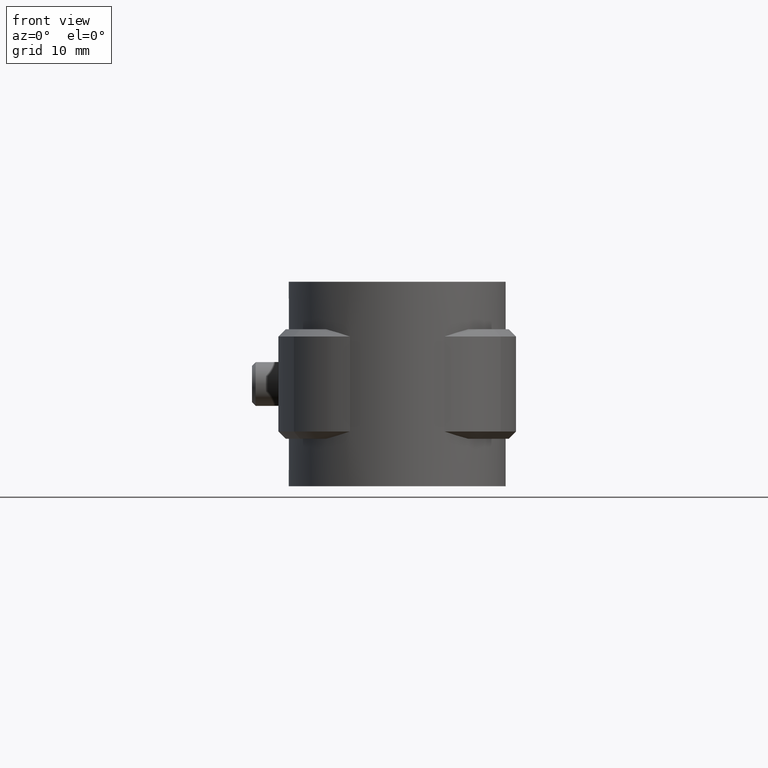
[diagram: clean part render]
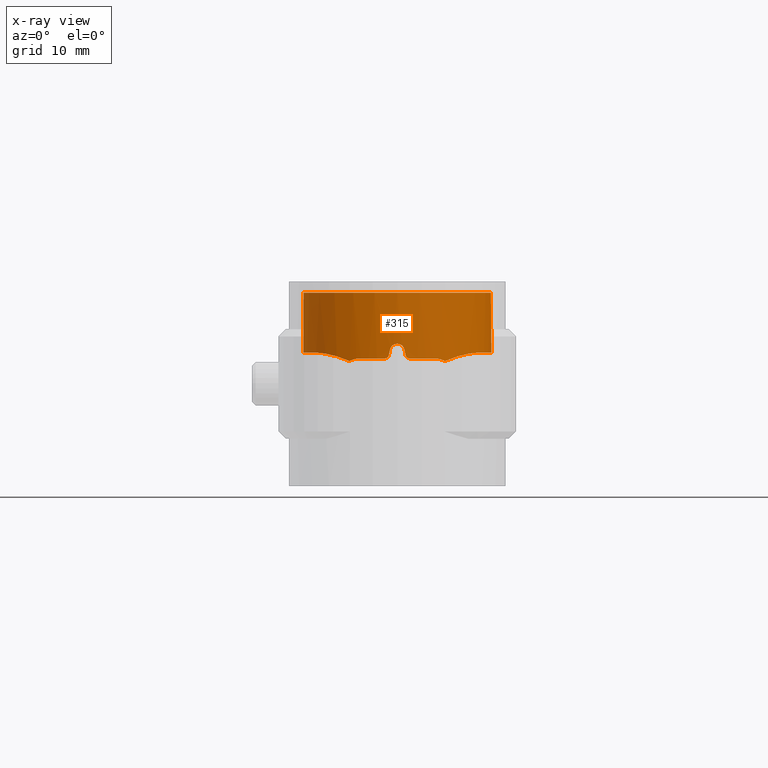
[diagram: x-ray — body ghosted, one internal face saturated and labeled with its STEP entity id]
A machine part, front view, then the same camera in x-ray: the body is ghosted and one INTERNAL B-rep face — a face not visible from any outside direction — is saturated and labeled: STEP entity #315.
In plain terms, the highlighted cylindrical surface (partial cylindrical patch) has radius 12.91 mm, axis along (0, 0, 1).
Its self-contained STEP definition (entity closure, byte-faithful):
#315 = ADVANCED_FACE( '', ( #523 ), #524, .T. );
#523 = FACE_OUTER_BOUND( '', #968, .T. );
#524 = CYLINDRICAL_SURFACE( '', #969, 12.9100000000000 );
#968 = EDGE_LOOP( '', ( #1797, #1798, #1799, #1800, #1801, #1802, #1803, #1804, #1805, #1806, #1807, #1808, #1809, #1810, #1811, #1812 ) );
#969 = AXIS2_PLACEMENT_3D( '', #1813, #1814, #1815 );
#1797 = ORIENTED_EDGE( '', *, *, #4470, .F. );
#1798 = ORIENTED_EDGE( '', *, *, #4471, .F. );
#1799 = ORIENTED_EDGE( '', *, *, #4472, .F. );
#1800 = ORIENTED_EDGE( '', *, *, #4473, .F. );
#1801 = ORIENTED_EDGE( '', *, *, #4474, .F. );
#1802 = ORIENTED_EDGE( '', *, *, #4475, .T. );
#1803 = ORIENTED_EDGE( '', *, *, #4476, .F. );
#1804 = ORIENTED_EDGE( '', *, *, #4477, .F. );
#1805 = ORIENTED_EDGE( '', *, *, #4478, .F. );
#1806 = ORIENTED_EDGE( '', *, *, #4479, .F. );
#1807 = ORIENTED_EDGE( '', *, *, #4480, .F. );
#1808 = ORIENTED_EDGE( '', *, *, #4481, .F. );
#1809 = ORIENTED_EDGE( '', *, *, #4482, .F. );
#1810 = ORIENTED_EDGE( '', *, *, #4483, .F. );
#1811 = ORIENTED_EDGE( '', *, *, #4484, .F. );
#1812 = ORIENTED_EDGE( '', *, *, #4485, .F. );
#1813 = CARTESIAN_POINT( '', ( 0.000000000000000, 0.000000000000000, 0.000000000000000 ) );
#1814 = DIRECTION( '', ( 0.000000000000000, 0.000000000000000, 1.00000000000000 ) );
#1815 = DIRECTION( '', ( 1.00000000000000, -6.12303176911189E-017, 0.000000000000000 ) );
#4470 = EDGE_CURVE( '', #5042, #5043, #5044, .T. );
#4471 = EDGE_CURVE( '', #5045, #5042, #5046, .T. );
#4472 = EDGE_CURVE( '', #5047, #5045, #5048, .T. );
#4473 = EDGE_CURVE( '', #5049, #5047, #5050, .T. );
#4474 = EDGE_CURVE( '', #5051, #5049, #5052, .F. );
#4475 = EDGE_CURVE( '', #5051, #5053, #5054, .T. );
#4476 = EDGE_CURVE( '', #5055, #5053, #5056, .T. );
#4477 = EDGE_CURVE( '', #5057, #5055, #5058, .T. );
#4478 = EDGE_CURVE( '', #5059, #5057, #5060, .T. );
#4479 = EDGE_CURVE( '', #5061, #5059, #5062, .T. );
#4480 = EDGE_CURVE( '', #5063, #5061, #5064, .T. );
#4481 = EDGE_CURVE( '', #5065, #5063, #5066, .T. );
#4482 = EDGE_CURVE( '', #5067, #5065, #5068, .T. );
#4483 = EDGE_CURVE( '', #5069, #5067, #5070, .T. );
#4484 = EDGE_CURVE( '', #5071, #5069, #5072, .T. );
#4485 = EDGE_CURVE( '', #5043, #5071, #5073, .T. );
#5042 = VERTEX_POINT( '', #5998 );
#5043 = VERTEX_POINT( '', #5999 );
#5044 = B_SPLINE_CURVE_WITH_KNOTS( '', 3, ( #6000, #6001, #6002, #6003, #6004, #6005 ), .UNSPECIFIED., .F., .F., ( 4, 2, 4 ), ( 0.0100745744029079, 0.0109624641031997, 0.0118503538034916 ), .UNSPECIFIED. );
#5045 = VERTEX_POINT( '', #6006 );
#5046 = B_SPLINE_CURVE_WITH_KNOTS( '', 3, ( #6007, #6008, #6009, #6010, #6011, #6012, #6013, #6014, #6015, #6016 ), .UNSPECIFIED., .F., .F., ( 4, 2, 2, 2, 4 ), ( 5.64749895672200E-005, 0.00336964445844548, 0.00419793682566505, 0.00502622919288461, 0.00668281392732375 ), .UNSPECIFIED. );
#5047 = VERTEX_POINT( '', #6017 );
#5048 = B_SPLINE_CURVE_WITH_KNOTS( '', 3, ( #6018, #6019, #6020, #6021, #6022, #6023, #6024, #6025, #6026, #6027, #6028, #6029, #6030, #6031, #6032, #6033, #6034, #6035, #6036, #6037, #6038, #6039, #6040, #6041 ), .UNSPECIFIED., .F., .F., ( 4, 2, 2, 2, 2, 2, 2, 2, 2, 2, 2, 4 ), ( 0.000000000000000, 0.00262616169573971, 0.00393924254360956, 0.00525232339147942, 0.00787848508721914, 0.00919156593508900, 0.0105046467829589, 0.0118177276308287, 0.0131308084786986, 0.0157569701744383, 0.0183831318701780, 0.0210092935659177 ), .UNSPECIFIED. );
#5049 = VERTEX_POINT( '', #6042 );
#5050 = LINE( '', #6043, #6044 );
#5051 = VERTEX_POINT( '', #6045 );
#5052 = CIRCLE( '', #6046, 12.9100000000000 );
#5053 = VERTEX_POINT( '', #6047 );
#5054 = LINE( '', #6048, #6049 );
#5055 = VERTEX_POINT( '', #6050 );
#5056 = B_SPLINE_CURVE_WITH_KNOTS( '', 3, ( #6051, #6052, #6053, #6054, #6055, #6056, #6057, #6058, #6059, #6060, #6061, #6062, #6063, #6064, #6065, #6066, #6067, #6068, #6069, #6070, #6071, #6072, #6073, #6074 ), .UNSPECIFIED., .F., .F., ( 4, 2, 2, 2, 2, 2, 2, 2, 2, 2, 2, 4 ), ( 0.000129656456609704, 0.00275580936475997, 0.00538196227291023, 0.00800811518106049, 0.00932119163513562, 0.0106342680892108, 0.0119473445432859, 0.0132604209973610, 0.0158865739055113, 0.0171996503595864, 0.0185127268136615, 0.0211388797218118 ), .UNSPECIFIED. );
#5057 = VERTEX_POINT( '', #6075 );
#5058 = B_SPLINE_CURVE_WITH_KNOTS( '', 3, ( #6076, #6077, #6078, #6079, #6080, #6081, #6082, #6083, #6084, #6085 ), .UNSPECIFIED., .F., .F., ( 4, 2, 2, 2, 4 ), ( 0.0160978879789235, 0.0177464275277820, 0.0193949670766405, 0.0210435066254990, 0.0226920461743575 ), .UNSPECIFIED. );
#5059 = VERTEX_POINT( '', #6086 );
#5060 = B_SPLINE_CURVE_WITH_KNOTS( '', 3, ( #6087, #6088, #6089, #6090, #6091, #6092 ), .UNSPECIFIED., .F., .F., ( 4, 2, 4 ), ( 3.87895961444886E-018, 0.000890649610167902, 0.00178129922033580 ), .UNSPECIFIED. );
#5061 = VERTEX_POINT( '', #6093 );
#5062 = CIRCLE( '', #6094, 12.9100000000000 );
#5063 = VERTEX_POINT( '', #6095 );
#5064 = B_SPLINE_CURVE_WITH_KNOTS( '', 3, ( #6096, #6097, #6098, #6099, #6100, #6101 ), .UNSPECIFIED., .F., .F., ( 4, 2, 4 ), ( 1.78811203067275E-018, 0.000337016490106995, 0.000674032980213989 ), .UNSPECIFIED. );
#5065 = VERTEX_POINT( '', #6102 );
#5066 = ELLIPSE( '', #6103, 58.8122822251916, 12.9100000000000 );
#5067 = VERTEX_POINT( '', #6104 );
#5068 = B_SPLINE_CURVE_WITH_KNOTS( '', 3, ( #6105, #6106, #6107, #6108, #6109, #6110, #6111, #6112, #6113, #6114 ), .UNSPECIFIED., .F., .F., ( 4, 2, 2, 2, 4 ), ( 9.26342742239755E-019, 0.000671833198564516, 0.00134366639712903, 0.00201549959569355, 0.00268733279425806 ), .UNSPECIFIED. );
#5069 = VERTEX_POINT( '', #6115 );
#5070 = ELLIPSE( '', #6116, 58.8122522236967, 12.9100000000000 );
#5071 = VERTEX_POINT( '', #6117 );
#5072 = B_SPLINE_CURVE_WITH_KNOTS( '', 3, ( #6118, #6119, #6120, #6121, #6122, #6123 ), .UNSPECIFIED., .F., .F., ( 4, 2, 4 ), ( 8.59738825340030E-018, 0.000336992785626757, 0.000673985571253506 ), .UNSPECIFIED. );
#5073 = CIRCLE( '', #6124, 12.9100000000000 );
#5998 = CARTESIAN_POINT( '', ( 6.55531539840426, -11.1218676501629, -9.36455840247556 ) );
#5999 = CARTESIAN_POINT( '', ( 5.00000000000000, -11.9024409261294, -9.00000000000000 ) );
#6000 = CARTESIAN_POINT( '', ( 6.55531539839940, -11.1218676501525, -9.36455840247315 ) );
#6001 = CARTESIAN_POINT( '', ( 6.32015172997991, -11.2604749475260, -9.24790699524380 ) );
#6002 = CARTESIAN_POINT( '', ( 6.07227759219039, -11.3965686208257, -9.15741431722998 ) );
#6003 = CARTESIAN_POINT( '', ( 5.54781086048457, -11.6608801615528, -9.03264343591434 ) );
#6004 = CARTESIAN_POINT( '', ( 5.27729536608152, -11.7859541618587, -8.99999999999998 ) );
#6005 = CARTESIAN_POINT( '', ( 5.00000000000000, -11.9024409261294, -8.99999999999997 ) );
#6006 = CARTESIAN_POINT( '', ( 11.1158138239829, -6.56557560542498, -8.20578959438989 ) );
#6007 = CARTESIAN_POINT( '', ( 11.1158138239829, -6.56557560542494, -8.20578959438988 ) );
#6008 = CARTESIAN_POINT( '', ( 10.5464443727055, -7.52954361033722, -8.22947050627589 ) );
#6009 = CARTESIAN_POINT( '', ( 9.86791215848431, -8.39632120479451, -8.32228283400495 ) );
#6010 = CARTESIAN_POINT( '', ( 8.89301540923206, -9.36257119812789, -8.55205024377319 ) );
#6011 = CARTESIAN_POINT( '', ( 8.69064900902044, -9.55066263861364, -8.60412425549421 ) );
#6012 = CARTESIAN_POINT( '', ( 8.27939493538370, -9.90929647041309, -8.71992973518773 ) );
#6013 = CARTESIAN_POINT( '', ( 8.07031816018667, -10.0801522768064, -8.78365793155719 ) );
#6014 = CARTESIAN_POINT( '', ( 7.43428651696818, -10.5681173585745, -8.99485449832332 ) );
#6015 = CARTESIAN_POINT( '', ( 6.99828295475331, -10.8607791230728, -9.16145208623091 ) );
#6016 = CARTESIAN_POINT( '', ( 6.55531539839195, -11.1218676501568, -9.36455840245641 ) );
#6017 = CARTESIAN_POINT( '', ( 5.86408106219426, 11.5013326747823, -8.20739690841978 ) );
#6018 = CARTESIAN_POINT( '', ( 5.86408106219414, 11.5013326747819, -8.20739690841976 ) );
#6019 = CARTESIAN_POINT( '', ( 6.65374116884316, 11.0987157774267, -8.20850447027294 ) );
#6020 = CARTESIAN_POINT( '', ( 7.38958332781680, 10.6221521878716, -8.20858405756369 ) );
#6021 = CARTESIAN_POINT( '', ( 8.41533312395806, 9.80011520993900, -8.20708110828983 ) );
#6022 = CARTESIAN_POINT( '', ( 8.74414498631813, 9.50809673492435, -8.20639190411670 ) );
#6023 = CARTESIAN_POINT( '', ( 9.37475983291398, 8.88694847164167, -8.20561692229041 ) );
#6024 = CARTESIAN_POINT( '', ( 9.67287342745124, 8.56128400351431, -8.20572960681876 ) );
#6025 = CARTESIAN_POINT( '', ( 10.5101398341898, 7.54804061959581, -8.20652661653834 ) );
#6026 = CARTESIAN_POINT( '', ( 10.9960156998445, 6.82143340626685, -8.20714016871088 ) );
#6027 = CARTESIAN_POINT( '', ( 11.6146013299799, 5.65359971102201, -8.20657302665306 ) );
#6028 = CARTESIAN_POINT( '', ( 11.8023493674690, 5.25030594704200, -8.20620526057067 ) );
#6029 = CARTESIAN_POINT( '', ( 12.1320109621542, 4.43570435709029, -8.20573297040743 ) );
#6030 = CARTESIAN_POINT( '', ( 12.2752050490306, 4.02222885437337, -8.20576909265969 ) );
#6031 = CARTESIAN_POINT( '', ( 12.5190504116225, 3.18313693452781, -8.20637065521503 ) );
#6032 = CARTESIAN_POINT( '', ( 12.6197013675470, 2.75752039986489, -8.20679643887767 ) );
#6033 = CARTESIAN_POINT( '', ( 12.7778575343168, 1.89397417998294, -8.20728006603311 ) );
#6034 = CARTESIAN_POINT( '', ( 12.8354998262448, 1.45348005402685, -8.20733455973576 ) );
#6035 = CARTESIAN_POINT( '', ( 12.9394089698893, 0.134297199856594, -8.20683423367183 ) );
#6036 = CARTESIAN_POINT( '', ( 12.9184987145224, -0.739797247285438, -8.20551512183126 ) );
#6037 = CARTESIAN_POINT( '', ( 12.7002716409491, -2.47750060551172, -8.20619344333585 ) );
#6038 = CARTESIAN_POINT( '', ( 12.4990630494520, -3.34816613684994, -8.20718605735141 ) );
#6039 = CARTESIAN_POINT( '', ( 11.9316203915142, -5.00731748812941, -8.20660974321113 ) );
#6040 = CARTESIAN_POINT( '', ( 11.5658892249966, -5.80357775001812, -8.20541266015148 ) );
#6041 = CARTESIAN_POINT( '', ( 11.1158139196182, -6.56557544351005, -8.20578963022182 ) );
#6042 = CARTESIAN_POINT( '', ( 5.86408106219427, 11.5013326747823, 0.000000000000000 ) );
#6043 = CARTESIAN_POINT( '', ( 5.86408106219426, 11.5013326747823, 0.000000000000000 ) );
#6044 = VECTOR( '', #8723, 1000.00000000000 );
#6045 = CARTESIAN_POINT( '', ( -5.86408106219428, 11.5013326747823, 0.000000000000000 ) );
#6046 = AXIS2_PLACEMENT_3D( '', #8724, #8725, #8726 );
#6047 = CARTESIAN_POINT( '', ( -5.86408106219428, 11.5013326747823, -8.20739690841976 ) );
#6048 = CARTESIAN_POINT( '', ( -5.86408106219428, 11.5013326747823, 0.000000000000000 ) );
#6049 = VECTOR( '', #8727, 1000.00000000000 );
#6050 = CARTESIAN_POINT( '', ( -11.1158138117273, -6.56557536555151, -8.20578944713720 ) );
#6051 = CARTESIAN_POINT( '', ( -11.1158139198082, -6.56557544318838, -8.20578963022167 ) );
#6052 = CARTESIAN_POINT( '', ( -11.5658895666345, -5.80357717155955, -8.20541265983343 ) );
#6053 = CARTESIAN_POINT( '', ( -11.9316290002090, -5.00730256760632, -8.20660977903030 ) );
#6054 = CARTESIAN_POINT( '', ( -12.4990860526416, -3.34808862649224, -8.20718605363684 ) );
#6055 = CARTESIAN_POINT( '', ( -12.7002847397959, -2.47743396846044, -8.20619335995856 ) );
#6056 = CARTESIAN_POINT( '', ( -12.9185028600661, -0.739726567347011, -8.20551515161069 ) );
#6057 = CARTESIAN_POINT( '', ( -12.9394152110773, 0.134421759773314, -8.20683441878293 ) );
#6058 = CARTESIAN_POINT( '', ( -12.8354691177184, 1.45376797723551, -8.20733459997422 ) );
#6059 = CARTESIAN_POINT( '', ( -12.7778245707622, 1.89418809180434, -8.20727999148852 ) );
#6060 = CARTESIAN_POINT( '', ( -12.6196695409946, 2.75766023367659, -8.20679631528926 ) );
#6061 = CARTESIAN_POINT( '', ( -12.5190193632556, 3.18325923349694, -8.20637053989893 ) );
#6062 = CARTESIAN_POINT( '', ( -12.2751649397533, 4.02235141019049, -8.20576903244234 ) );
#6063 = CARTESIAN_POINT( '', ( -12.1319610712916, 4.43584472086581, -8.20573300720574 ) );
#6064 = CARTESIAN_POINT( '', ( -11.8022579748046, 5.25051469087847, -8.20620542619729 ) );
#6065 = CARTESIAN_POINT( '', ( -11.6144849626805, 5.65383498072774, -8.20657318849852 ) );
#6066 = CARTESIAN_POINT( '', ( -10.9959482314771, 6.82152961154648, -8.20714012021692 ) );
#6067 = CARTESIAN_POINT( '', ( -10.5100859424053, 7.54812196949583, -8.20652650478776 ) );
#6068 = CARTESIAN_POINT( '', ( -9.67275572270320, 8.56141837984192, -8.20572952500622 ) );
#6069 = CARTESIAN_POINT( '', ( -9.37454082121898, 8.88717660388075, -8.20561706952225 ) );
#6070 = CARTESIAN_POINT( '', ( -8.74399641512102, 9.50823066030779, -8.20639220868978 ) );
#6071 = CARTESIAN_POINT( '', ( -8.41521652184688, 9.80021364609152, -8.20708131043808 ) );
#6072 = CARTESIAN_POINT( '', ( -7.38954783507031, 10.6221706476417, -8.20858404695509 ) );
#6073 = CARTESIAN_POINT( '', ( -6.65374034264626, 11.0987161986727, -8.20850446911513 ) );
#6074 = CARTESIAN_POINT( '', ( -5.86408106219440, 11.5013326747822, -8.20739690842075 ) );
#6075 = CARTESIAN_POINT( '', ( -6.55531539837834, -11.1218676501649, -9.36455840246265 ) );
#6076 = CARTESIAN_POINT( '', ( -6.55531539837831, -11.1218676501649, -9.36455840246267 ) );
#6077 = CARTESIAN_POINT( '', ( -6.99852238394517, -10.8606380016434, -9.16134230486934 ) );
#6078 = CARTESIAN_POINT( '', ( -7.44309559181319, -10.5619465283304, -8.99160964930167 ) );
#6079 = CARTESIAN_POINT( '', ( -8.29155193523834, -9.90982103579195, -8.71052310510688 ) );
#6080 = CARTESIAN_POINT( '', ( -8.69778571529010, -9.55572697920060, -8.59818379681480 ) );
#6081 = CARTESIAN_POINT( '', ( -9.47003956949126, -8.79100364022200, -8.41593517796647 ) );
#6082 = CARTESIAN_POINT( '', ( -9.83809333796787, -8.37777732360427, -8.34635335692084 ) );
#6083 = CARTESIAN_POINT( '', ( -10.5198548985254, -7.50385809596876, -8.24729764131964 ) );
#6084 = CARTESIAN_POINT( '', ( -10.8323270987695, -7.04553134027729, -8.21758022428341 ) );
#6085 = CARTESIAN_POINT( '', ( -11.1158138288986, -6.56557559710239, -8.20578959418543 ) );
#6086 = CARTESIAN_POINT( '', ( -5.00000000000005, -11.9024409261294, -9.00000000000000 ) );
#6087 = CARTESIAN_POINT( '', ( -5.00000000000005, -11.9024409261294, -8.99999999999997 ) );
#6088 = CARTESIAN_POINT( '', ( -5.27791933988741, -11.7856920417567, -8.99999999999997 ) );
#6089 = CARTESIAN_POINT( '', ( -5.54620353624585, -11.6615722990112, -9.03259733755304 ) );
#6090 = CARTESIAN_POINT( '', ( -6.06560149942964, -11.4000491490453, -9.15549510824620 ) );
#6091 = CARTESIAN_POINT( '', ( -6.31911453996093, -11.2610862753992, -9.24739250388705 ) );
#6092 = CARTESIAN_POINT( '', ( -6.55531539837834, -11.1218676501649, -9.36455840246265 ) );
#6093 = CARTESIAN_POINT( '', ( -1.65000000000003, -12.8041243355413, -9.00000000000000 ) );
#6094 = AXIS2_PLACEMENT_3D( '', #8728, #8729, #8730 );
#6095 = CARTESIAN_POINT( '', ( -1.16219512100914, -12.8575815183378, -8.60975609337373 ) );
#6096 = CARTESIAN_POINT( '', ( -1.16219512100915, -12.8575815183378, -8.60975609337372 ) );
#6097 = CARTESIAN_POINT( '', ( -1.18720577628469, -12.8553208084607, -8.72091456572038 ) );
#6098 = CARTESIAN_POINT( '', ( -1.24952712846974, -12.8496981485357, -8.82016248163292 ) );
#6099 = CARTESIAN_POINT( '', ( -1.42700965376445, -12.8312004115487, -8.96169020020224 ) );
#6100 = CARTESIAN_POINT( '', ( -1.53699580313443, -12.8186865906352, -8.99999999999994 ) );
#6101 = CARTESIAN_POINT( '', ( -1.65000000000003, -12.8041243355413, -8.99999999999994 ) );
#6102 = CARTESIAN_POINT( '', ( -0.975610000000025, -12.8730837458590, -7.78048800000004 ) );
#6103 = AXIS2_PLACEMENT_3D( '', #8731, #8732, #8733 );
#6104 = CARTESIAN_POINT( '', ( 0.975609757981814, -12.8730837642008, -7.78048781325256 ) );
#6105 = CARTESIAN_POINT( '', ( 0.975609757981816, -12.8730837642008, -7.78048781325256 ) );
#6106 = CARTESIAN_POINT( '', ( 0.925748592681881, -12.8768625821051, -7.55888272429547 ) );
#6107 = CARTESIAN_POINT( '', ( 0.801986059792278, -12.8862875597982, -7.36098203978120 ) );
#6108 = CARTESIAN_POINT( '', ( 0.447500666767335, -12.9034620109160, -7.07735773491965 ) );
#6109 = CARTESIAN_POINT( '', ( 0.227172866612440, -12.9100000447177, -6.99999944197818 ) );
#6110 = CARTESIAN_POINT( '', ( -0.227177949106791, -12.9099999552818, -7.00000055116068 ) );
#6111 = CARTESIAN_POINT( '', ( -0.447613664813755, -12.9034572666642, -7.07742832058838 ) );
#6112 = CARTESIAN_POINT( '', ( -0.801979139741392, -12.8862871644620, -7.36099601310312 ) );
#6113 = CARTESIAN_POINT( '', ( -0.925748842232397, -12.8768625641352, -7.55888274644759 ) );
#6114 = CARTESIAN_POINT( '', ( -0.975610000000026, -12.8730837458590, -7.78048800000004 ) );
#6115 = CARTESIAN_POINT( '', ( 1.16219499999999, -12.8575815292758, -8.60975599999998 ) );
#6116 = AXIS2_PLACEMENT_3D( '', #8734, #8735, #8736 );
#6117 = CARTESIAN_POINT( '', ( 1.64999999999995, -12.8041243355413, -9.00000000000000 ) );
#6118 = CARTESIAN_POINT( '', ( 1.64999999999995, -12.8041243355413, -8.99999999999994 ) );
#6119 = CARTESIAN_POINT( '', ( 1.53699571464535, -12.8186866020383, -9.00000000048495 ) );
#6120 = CARTESIAN_POINT( '', ( 1.42700640850480, -12.8312006729534, -8.96168353558250 ) );
#6121 = CARTESIAN_POINT( '', ( 1.24955236960382, -12.8496955946485, -8.82018675731936 ) );
#6122 = CARTESIAN_POINT( '', ( 1.18720569103340, -12.8553208164039, -8.72091462904289 ) );
#6123 = CARTESIAN_POINT( '', ( 1.16219499999999, -12.8575815292758, -8.60975599999998 ) );
#6124 = AXIS2_PLACEMENT_3D( '', #8737, #8738, #8739 );
#8723 = DIRECTION( '', ( 0.000000000000000, 0.000000000000000, -1.00000000000000 ) );
#8724 = CARTESIAN_POINT( '', ( 0.000000000000000, 0.000000000000000, 0.000000000000000 ) );
#8725 = DIRECTION( '', ( 0.000000000000000, 0.000000000000000, -1.00000000000000 ) );
#8726 = DIRECTION( '', ( -1.00000000000000, 0.000000000000000, 0.000000000000000 ) );
#8727 = DIRECTION( '', ( 0.000000000000000, 0.000000000000000, -1.00000000000000 ) );
#8728 = CARTESIAN_POINT( '', ( 0.000000000000000, 0.000000000000000, -9.00000000000000 ) );
#8729 = DIRECTION( '', ( 6.12303176911189E-017, -1.56572574765720E-016, -1.00000000000000 ) );
#8730 = DIRECTION( '', ( 0.000000000000000, 1.00000000000000, -1.56572574765720E-016 ) );
#8731 = CARTESIAN_POINT( '', ( 0.000000000000000, 0.000000000000000, -3.44443890776446 ) );
#8732 = DIRECTION( '', ( 0.975609806487711, 1.65590917266197E-017, -0.219511971165610 ) );
#8733 = DIRECTION( '', ( -0.219511971165610, -3.72579164482623E-018, -0.975609806487711 ) );
#8734 = CARTESIAN_POINT( '', ( 0.000000000000000, 0.000000000000000, -3.44444212055029 ) );
#8735 = DIRECTION( '', ( -0.975609781292647, -8.52982169786940E-017, -0.219512083143762 ) );
#8736 = DIRECTION( '', ( 0.219512083143762, 1.91920885342428E-017, -0.975609781292647 ) );
#8737 = CARTESIAN_POINT( '', ( 0.000000000000000, 0.000000000000000, -9.00000000000000 ) );
#8738 = DIRECTION( '', ( 6.12303176911189E-017, -1.56572574765720E-016, -1.00000000000000 ) );
#8739 = DIRECTION( '', ( 0.000000000000000, 1.00000000000000, -1.56572574765720E-016 ) );